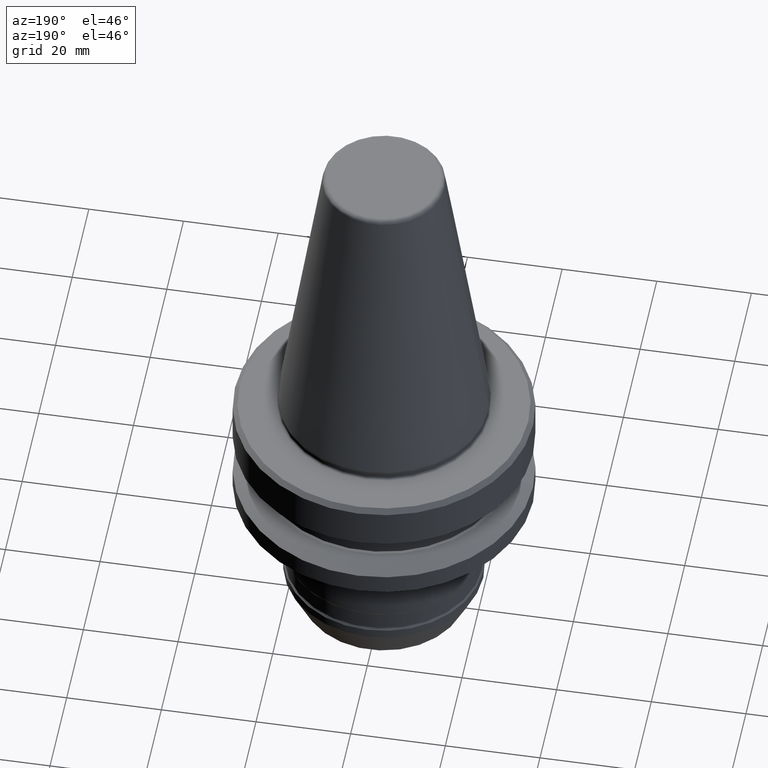
[diagram: clean part render]
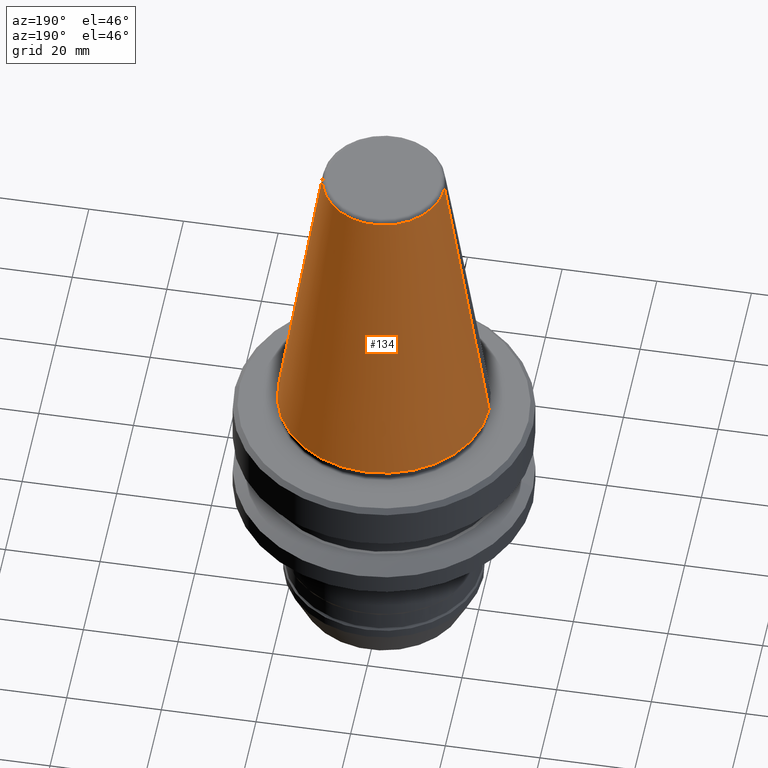
[diagram: same view with one face highlighted and labeled with its STEP entity id]
A machine part, auxiliary view. The second image highlights one B-rep face of the part: STEP entity #134.
In plain terms, the highlighted conical surface has half-angle 8.297 deg.
Its self-contained STEP definition (entity closure, byte-faithful):
#29 = CARTESIAN_POINT ( 'NONE',  ( 12.81220206926714200, 2.145409868260347400E-015, 64.54430818888879200 ) ) ;
#126 = AXIS2_PLACEMENT_3D ( 'NONE', #315, #408, #1164 ) ;
#134 = ADVANCED_FACE ( 'NONE', ( #555 ), #533, .T. ) ;
#180 = CARTESIAN_POINT ( 'NONE',  ( 0.0000000000000000000, 0.0000000000000000000, 0.0000000000000000000 ) ) ;
#195 = AXIS2_PLACEMENT_3D ( 'NONE', #180, #894, #285 ) ;
#198 = VECTOR ( 'NONE', #888, 1000.000000000000200 ) ;
#201 = LINE ( 'NONE', #1055, #198 ) ;
#205 = CIRCLE ( 'NONE', #195, 22.22499999999993700 ) ;
#211 = VECTOR ( 'NONE', #941, 1000.000000000000200 ) ;
#215 = LINE ( 'NONE', #778, #211 ) ;
#223 = CIRCLE ( 'NONE', #1155, 12.81220206926714200 ) ;
#285 = DIRECTION ( 'NONE',  ( 1.000000000000000000, 0.0000000000000000000, 0.0000000000000000000 ) ) ;
#315 = CARTESIAN_POINT ( 'NONE',  ( 0.0000000000000000000, 0.0000000000000000000, 0.0000000000000000000 ) ) ;
#317 = CARTESIAN_POINT ( 'NONE',  ( -12.81220206926714200, 0.0000000000000000000, 64.54430818888879200 ) ) ;
#408 = DIRECTION ( 'NONE',  ( 0.0000000000000000000, 0.0000000000000000000, -1.000000000000000000 ) ) ;
#533 = CONICAL_SURFACE ( 'NONE', #126, 22.22499999999993700, 0.1448138077621705900 ) ;
#555 = FACE_OUTER_BOUND ( 'NONE', #648, .T. ) ;
#608 = CARTESIAN_POINT ( 'NONE',  ( 0.0000000000000000000, 0.0000000000000000000, 64.54430818888879200 ) ) ;
#648 = EDGE_LOOP ( 'NONE', ( #688, #1181, #951, #926 ) ) ;
#662 = EDGE_CURVE ( 'NONE', #1172, #781, #215, .T. ) ;
#671 = EDGE_CURVE ( 'NONE', #1013, #1172, #223, .T. ) ;
#685 = EDGE_CURVE ( 'NONE', #1013, #689, #201, .T. ) ;
#688 = ORIENTED_EDGE ( 'NONE', *, *, #671, .F. ) ;
#689 = VERTEX_POINT ( 'NONE', #977 ) ;
#700 = EDGE_CURVE ( 'NONE', #689, #781, #205, .T. ) ;
#702 = DIRECTION ( 'NONE',  ( 1.000000000000000000, 0.0000000000000000000, 0.0000000000000000000 ) ) ;
#778 = CARTESIAN_POINT ( 'NONE',  ( -22.22499999999993700, 0.0000000000000000000, 0.0000000000000000000 ) ) ;
#781 = VERTEX_POINT ( 'NONE', #1252 ) ;
#888 = DIRECTION ( 'NONE',  ( 0.1443081888880319000, 1.767265616124799100E-017, -0.9895327920892040800 ) ) ;
#894 = DIRECTION ( 'NONE',  ( -0.0000000000000000000, -0.0000000000000000000, 1.000000000000000000 ) ) ;
#926 = ORIENTED_EDGE ( 'NONE', *, *, #662, .F. ) ;
#941 = DIRECTION ( 'NONE',  ( -0.1443081888880319000, 0.0000000000000000000, -0.9895327920892040800 ) ) ;
#951 = ORIENTED_EDGE ( 'NONE', *, *, #700, .T. ) ;
#977 = CARTESIAN_POINT ( 'NONE',  ( 22.22499999999993700, 0.0000000000000000000, 0.0000000000000000000 ) ) ;
#1013 = VERTEX_POINT ( 'NONE', #29 ) ;
#1055 = CARTESIAN_POINT ( 'NONE',  ( 22.22499999999993700, 2.721777511104985000E-015, 0.0000000000000000000 ) ) ;
#1155 = AXIS2_PLACEMENT_3D ( 'NONE', #608, #1222, #702 ) ;
#1164 = DIRECTION ( 'NONE',  ( -1.000000000000000000, 0.0000000000000000000, 0.0000000000000000000 ) ) ;
#1172 = VERTEX_POINT ( 'NONE', #317 ) ;
#1181 = ORIENTED_EDGE ( 'NONE', *, *, #685, .T. ) ;
#1222 = DIRECTION ( 'NONE',  ( -0.0000000000000000000, -0.0000000000000000000, 1.000000000000000000 ) ) ;
#1252 = CARTESIAN_POINT ( 'NONE',  ( -22.22499999999993700, 2.721777511104985000E-015, 0.0000000000000000000 ) ) ;